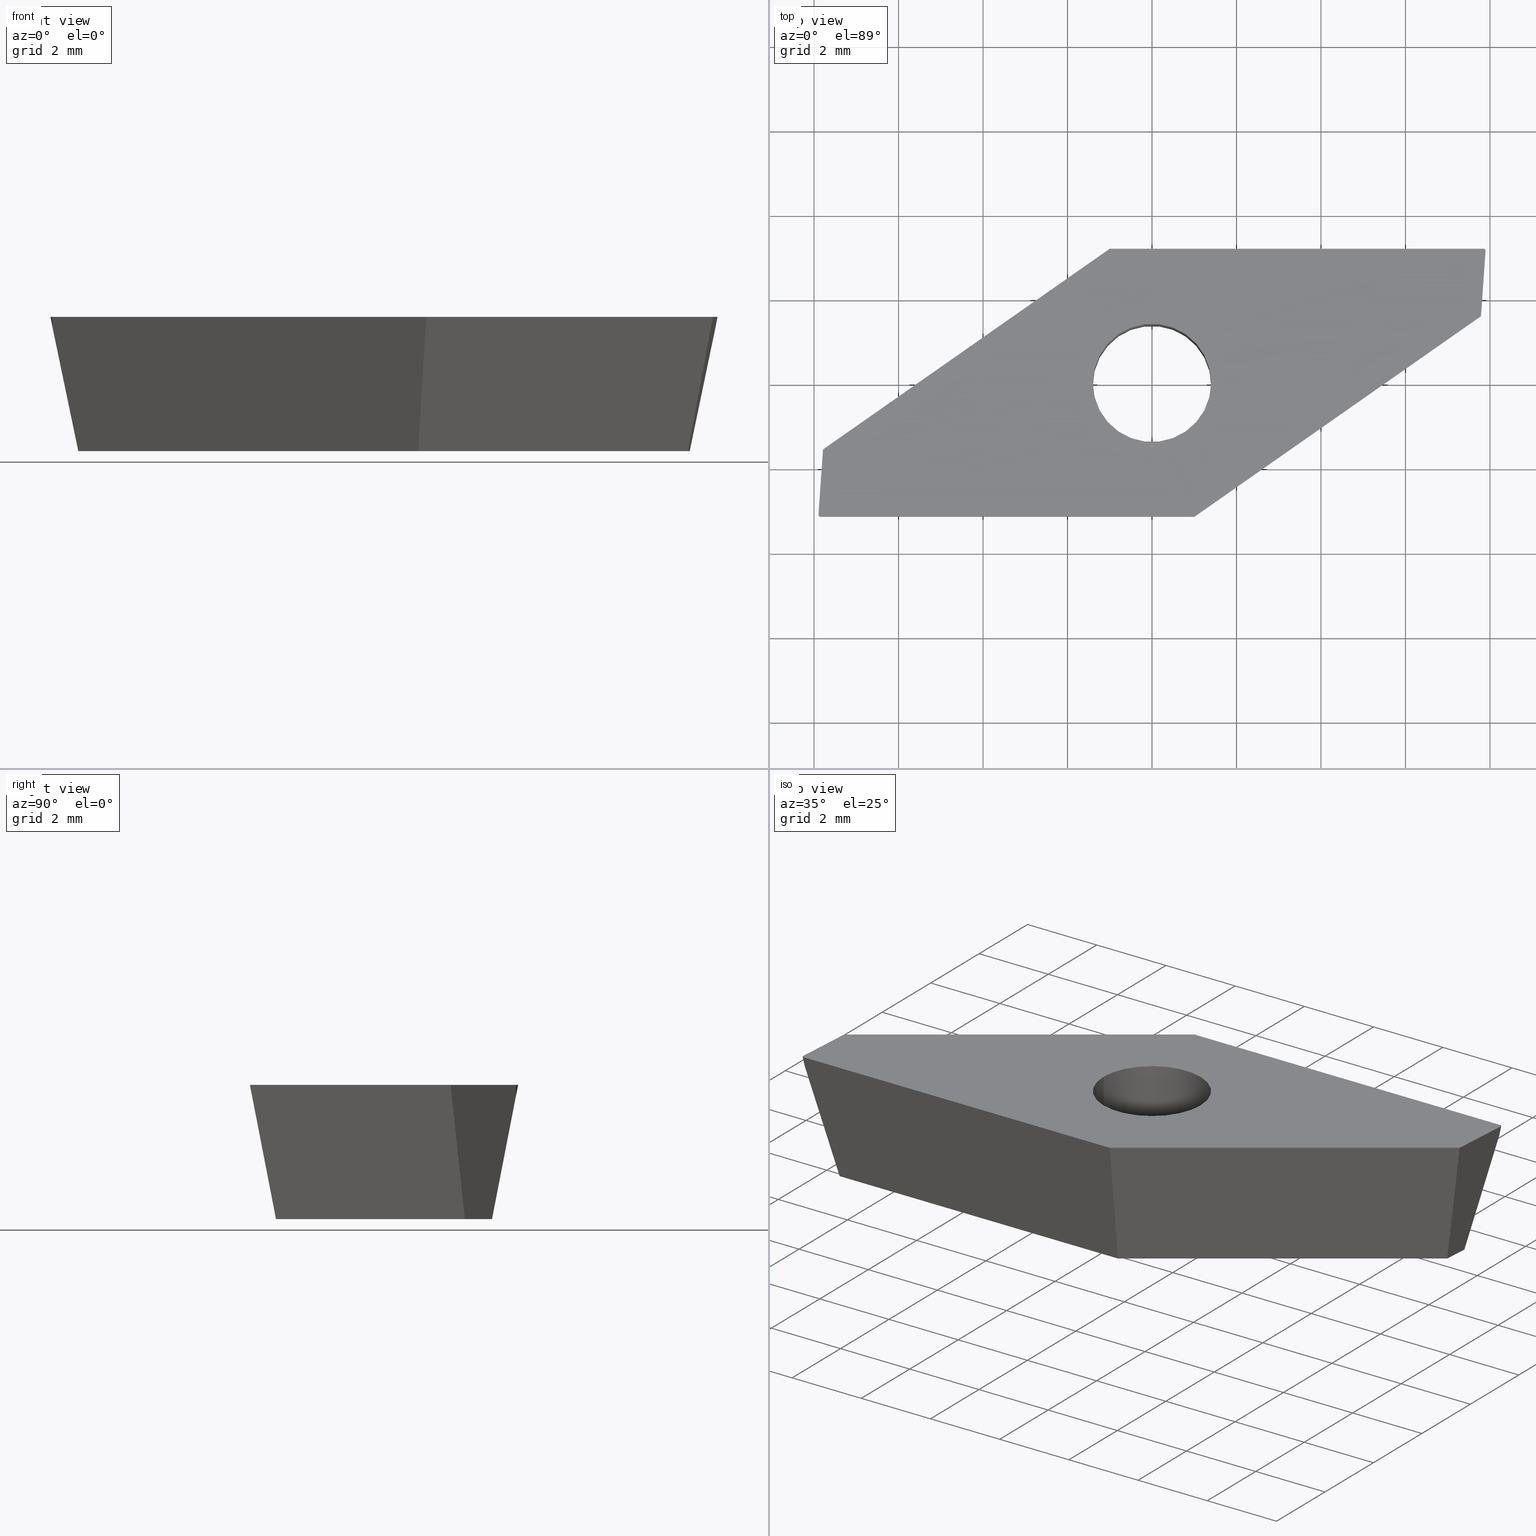
[diagram: canonical four-view strip — front | top / right | iso, engineering-drawing reading convention]
A machine part, canonical four-view strip (front | top / right | iso — engineering-drawing reading convention). The complete STEP part file that produces these views, byte-faithful:
ISO-10303-21;
HEADER;
FILE_DESCRIPTION (( 'STEP AP214' ),
    '1' );
FILE_NAME ('VP.. 1003005 .R.step',
    '2017-03-30T12:57:39',
    ( '' ),
    ( '' ),
    'SwSTEP 2.0',
    'SolidWorks 2016',
    '' );
FILE_SCHEMA (( 'AUTOMOTIVE_DESIGN' ));
ENDSEC;

DATA;
#1 = VECTOR ( 'NONE', #431, 1000.000000000000000 ) ;
#2 = CARTESIAN_POINT ( 'NONE',  ( 1.001073654690762600, -3.174999999999999800, 0.0000000000000000000 ) ) ;
#3 = FACE_OUTER_BOUND ( 'NONE', #160, .T. ) ;
#4 = DIRECTION ( 'NONE',  ( -0.8191520442889950200, -0.5735764363510415000, 0.0000000000000000000 ) ) ;
#5 = LINE ( 'NONE', #368, #124 ) ;
#6 = DIRECTION ( 'NONE',  ( 0.0000000000000000000, 0.0000000000000000000, -1.000000000000000000 ) ) ;
#7 = CLOSED_SHELL ( 'NONE', ( #445, #188, #23, #138, #38, #185, #164, #131, #61, #111, #156, #162, #96 ) ) ;
#8 = EDGE_CURVE ( 'NONE', #411, #99, #184, .T. ) ;
#9 = CARTESIAN_POINT ( 'NONE',  ( -7.237137390861799500, -2.556870616942054300, -3.180000000000000200 ) ) ;
#10 = ORIENTED_EDGE ( 'NONE', *, *, #226, .T. ) ;
#11 =( GEOMETRIC_REPRESENTATION_CONTEXT ( 3 ) GLOBAL_UNCERTAINTY_ASSIGNED_CONTEXT ( ( #100 ) ) GLOBAL_UNIT_ASSIGNED_CONTEXT ( ( #69, #81, #79 ) ) REPRESENTATION_CONTEXT ( 'NONE', 'WORKASPACE' ) );
#12 = AXIS2_PLACEMENT_3D ( 'NONE', #180, #291, #449 ) ;
#13 = CARTESIAN_POINT ( 'NONE',  ( 7.283376349052109500, 3.218118526079754900, -3.180000000000000200 ) ) ;
#14 = PRESENTATION_STYLE_ASSIGNMENT (( #66 ) ) ;
#15 = SURFACE_STYLE_FILL_AREA ( #145 ) ;
#16 = PRESENTATION_STYLE_ASSIGNMENT (( #70 ) ) ;
#17 = CONICAL_SURFACE ( 'NONE', #435, 0.04999999999999969700, 0.1919862177193767100 ) ;
#18 = PRODUCT_DEFINITION_CONTEXT ( 'detailed design', #30, 'design' ) ;
#19 = DIRECTION ( 'NONE',  ( -0.0000000000000000000, -0.0000000000000000000, 1.000000000000000000 ) ) ;
#20 = VECTOR ( 'NONE', #211, 1000.000000000000100 ) ;
#21 = COLOUR_RGB ( '',0.7960784313725489700, 0.8235294117647058400, 0.9372549019607843100 ) ;
#22 = LINE ( 'NONE', #298, #24 ) ;
#23 = ADVANCED_FACE ( 'NONE', ( #194 ), #371, .T. ) ;
#24 = VECTOR ( 'NONE', #306, 1000.000000000000100 ) ;
#25 =( GEOMETRIC_REPRESENTATION_CONTEXT ( 3 ) GLOBAL_UNCERTAINTY_ASSIGNED_CONTEXT ( ( #376 ) ) GLOBAL_UNIT_ASSIGNED_CONTEXT ( ( #98, #97, #95 ) ) REPRESENTATION_CONTEXT ( 'NONE', 'WORKASPACE' ) );
#26 = CONICAL_SURFACE ( 'NONE', #362, 0.04999999999999969700, 0.1919862177193767100 ) ;
#27 = VECTOR ( 'NONE', #379, 1000.000000000000100 ) ;
#28 = CONICAL_SURFACE ( 'NONE', #429, 0.04999999999999969700, 0.1919862177193767100 ) ;
#29 = APPLICATION_PROTOCOL_DEFINITION ( 'draft international standard', 'automotive_design', 1998, #30 ) ;
#30 = APPLICATION_CONTEXT ( 'automotive_design' ) ;
#31 = PRODUCT_CONTEXT ( 'NONE', #45, 'mechanical' ) ;
#32 = APPLICATION_PROTOCOL_DEFINITION ( 'draft international standard', 'automotive_design', 1998, #45 ) ;
#33 = APPLICATION_PROTOCOL_DEFINITION ( 'draft international standard', 'automotive_design', 1998, #35 ) ;
#34 = FACE_OUTER_BOUND ( 'NONE', #326, .T. ) ;
#35 = APPLICATION_CONTEXT ( 'automotive_design' ) ;
#36 = PRODUCT_CONTEXT ( 'NONE', #40, 'mechanical' ) ;
#37 = CARTESIAN_POINT ( 'NONE',  ( -1.001073654690764600, 3.174999999999999800, 0.0000000000000000000 ) ) ;
#38 = ADVANCED_FACE ( 'NONE', ( #3 ), #233, .T. ) ;
#39 = APPLICATION_PROTOCOL_DEFINITION ( 'draft international standard', 'automotive_design', 1998, #40 ) ;
#40 = APPLICATION_CONTEXT ( 'automotive_design' ) ;
#41 = AXIS2_PLACEMENT_3D ( 'NONE', #147, #274, #163 ) ;
#42 = FACE_OUTER_BOUND ( 'NONE', #344, .T. ) ;
#43 =( LENGTH_UNIT ( ) NAMED_UNIT ( * ) SI_UNIT ( .MILLI., .METRE. ) );
#44 = LINE ( 'NONE', #437, #27 ) ;
#45 = APPLICATION_CONTEXT ( 'automotive_design' ) ;
#46 = DIRECTION ( 'NONE',  ( 1.000000000000000000, 0.0000000000000000000, 0.0000000000000000000 ) ) ;
#47 = PLANE ( 'NONE',  #401 ) ;
#48 = FACE_OUTER_BOUND ( 'NONE', #352, .T. ) ;
#49 = PRODUCT_DEFINITION_CONTEXT ( 'detailed design', #35, 'design' ) ;
#50 = FACE_OUTER_BOUND ( 'NONE', #261, .T. ) ;
#51 = CARTESIAN_POINT ( 'NONE',  ( -7.896259767011758700, -3.121512176312794200, -2.356869175735090700E-016 ) ) ;
#52 = DIRECTION ( 'NONE',  ( 0.1832382521941806600, -0.1036712150141735900, 0.9775868360970839700 ) ) ;
#53 = DIRECTION ( 'NONE',  ( -1.000000000000000000, 0.0000000000000000000, 0.0000000000000000000 ) ) ;
#54 = DIRECTION ( 'NONE',  ( 0.0000000000000000000, 0.0000000000000000000, 1.000000000000000000 ) ) ;
#55 = DIRECTION ( 'NONE',  ( 1.000000000000000000, 0.0000000000000000000, 0.0000000000000000000 ) ) ;
#56 = DIRECTION ( 'NONE',  ( 1.000000000000000000, 0.0000000000000000000, 0.0000000000000000000 ) ) ;
#57 = FACE_OUTER_BOUND ( 'NONE', #377, .T. ) ;
#58 = FILL_AREA_STYLE ('',( #63 ) ) ;
#59 = CARTESIAN_POINT ( 'NONE',  ( 7.788289079147451100, 1.577459403657729400, 3.148184459698170000E-018 ) ) ;
#60 = DIRECTION ( 'NONE',  ( 0.06975647374412545500, 0.9975640502598242000, 0.0000000000000000000 ) ) ;
#61 = ADVANCED_FACE ( 'NONE', ( #168, #166 ), #276, .T. ) ;
#62 = VECTOR ( 'NONE', #4, 1000.000000000000000 ) ;
#63 = FILL_AREA_STYLE_COLOUR ( '', #392 ) ;
#64 = FACE_OUTER_BOUND ( 'NONE', #277, .T. ) ;
#65 = MECHANICAL_DESIGN_GEOMETRIC_PRESENTATION_REPRESENTATION (  '', ( #146 ), #122 ) ;
#66 = SURFACE_STYLE_USAGE ( .BOTH. , #212 ) ;
#67 = DIRECTION ( 'NONE',  ( 0.5630382217072209500, -0.8041019140508023400, -0.1908089953765452500 ) ) ;
#68 = EDGE_CURVE ( 'NONE', #296, #363, #127, .T. ) ;
#69 =( LENGTH_UNIT ( ) NAMED_UNIT ( * ) SI_UNIT ( .MILLI., .METRE. ) );
#70 = SURFACE_STYLE_USAGE ( .BOTH. , #74 ) ;
#71 = LINE ( 'NONE', #418, #62 ) ;
#72 = PLANE ( 'NONE',  #400 ) ;
#73 = EDGE_CURVE ( 'NONE', #318, #269, #5, .T. ) ;
#74 = SURFACE_SIDE_STYLE ('',( #369 ) ) ;
#75 = CIRCLE ( 'NONE', #191, 0.04999999999999969700 ) ;
#76 = CYLINDRICAL_SURFACE ( 'NONE', #385, 1.399999999999999900 ) ;
#77 = DIRECTION ( 'NONE',  ( 0.0000000000000000000, 0.0000000000000000000, 1.000000000000000000 ) ) ;
#78 = CIRCLE ( 'NONE', #273, 0.04999999999999969700 ) ;
#79 =( NAMED_UNIT ( * ) SI_UNIT ( $, .STERADIAN. ) SOLID_ANGLE_UNIT ( ) );
#80 = CARTESIAN_POINT ( 'NONE',  ( -7.846381564498768700, -3.125000000000000400, 0.0000000000000000000 ) ) ;
#81 =( NAMED_UNIT ( * ) PLANE_ANGLE_UNIT ( ) SI_UNIT ( $, .RADIAN. ) );
#82 = DIRECTION ( 'NONE',  ( 0.0000000000000000000, 0.0000000000000000000, 1.000000000000000000 ) ) ;
#83 = FACE_BOUND ( 'NONE', #305, .T. ) ;
#84 = DIRECTION ( 'NONE',  ( 0.8191520442889952400, 0.5735764363510412700, -0.0000000000000000000 ) ) ;
#85 = CARTESIAN_POINT ( 'NONE',  ( 7.788289079147451100, 1.577459403657729400, 0.0000000000000000000 ) ) ;
#86 = VERTEX_POINT ( 'NONE', #229 ) ;
#87 = CARTESIAN_POINT ( 'NONE',  ( 1.399999999999999900, 0.0000000000000000000, 0.0000000000000000000 ) ) ;
#88 = AXIS2_PLACEMENT_3D ( 'NONE', #242, #238, #237 ) ;
#89 = DIRECTION ( 'NONE',  ( -0.0000000000000000000, -0.0000000000000000000, 1.000000000000000000 ) ) ;
#90 = VECTOR ( 'NONE', #133, 1000.000000000000000 ) ;
#91 = CARTESIAN_POINT ( 'NONE',  ( -7.846381564498768700, -3.125000000000000400, 0.0000000000000000000 ) ) ;
#92 = LINE ( 'NONE', #312, #90 ) ;
#93 = EDGE_CURVE ( 'NONE', #86, #313, #92, .T. ) ;
#94 = VECTOR ( 'NONE', #190, 1000.000000000000100 ) ;
#95 =( NAMED_UNIT ( * ) SI_UNIT ( $, .STERADIAN. ) SOLID_ANGLE_UNIT ( ) );
#96 = ADVANCED_FACE ( 'NONE', ( #117 ), #76, .F. ) ;
#97 =( NAMED_UNIT ( * ) PLANE_ANGLE_UNIT ( ) SI_UNIT ( $, .RADIAN. ) );
#98 =( LENGTH_UNIT ( ) NAMED_UNIT ( * ) SI_UNIT ( .MILLI., .METRE. ) );
#99 = VERTEX_POINT ( 'NONE', #142 ) ;
#100 = UNCERTAINTY_MEASURE_WITH_UNIT (LENGTH_MEASURE( 1.000000000000000100E-005 ), #69, 'distance_accuracy_value', 'NONE');
#101 = ORIENTED_EDGE ( 'NONE', *, *, #394, .T. ) ;
#102 = ORIENTED_EDGE ( 'NONE', *, *, #215, .F. ) ;
#103 = CARTESIAN_POINT ( 'NONE',  ( -0.8061782088420828000, 2.556870616942053400, -3.180000000000000200 ) ) ;
#104 = DIRECTION ( 'NONE',  ( -0.0000000000000000000, -0.0000000000000000000, 1.000000000000000000 ) ) ;
#105 = EDGE_CURVE ( 'NONE', #269, #411, #78, .T. ) ;
#106 = CARTESIAN_POINT ( 'NONE',  ( 0.0000000000000000000, 0.0000000000000000000, 0.0000000000000000000 ) ) ;
#107 = DIRECTION ( 'NONE',  ( -0.0000000000000000000, -0.0000000000000000000, 1.000000000000000000 ) ) ;
#108 = EDGE_LOOP ( 'NONE', ( #213, #214, #216, #222, #224 ) ) ;
#109 = ORIENTED_EDGE ( 'NONE', *, *, #324, .T. ) ;
#110 = CARTESIAN_POINT ( 'NONE',  ( 7.900000000000000400, 3.175000000000000700, 0.0000000000000000000 ) ) ;
#111 = ADVANCED_FACE ( 'NONE', ( #83, #125 ), #356, .F. ) ;
#112 = VERTEX_POINT ( 'NONE', #128 ) ;
#113 = CARTESIAN_POINT ( 'NONE',  ( -7.900000000000002100, -3.175000000000000700, 0.0000000000000000000 ) ) ;
#114 = CARTESIAN_POINT ( 'NONE',  ( 0.0000000000000000000, 0.0000000000000000000, 0.0000000000000000000 ) ) ;
#115 = DIRECTION ( 'NONE',  ( 1.000000000000000000, 0.0000000000000000000, 0.0000000000000000000 ) ) ;
#116 = DIRECTION ( 'NONE',  ( -1.000000000000000000, 0.0000000000000000000, 0.0000000000000000000 ) ) ;
#117 = FACE_OUTER_BOUND ( 'NONE', #334, .T. ) ;
#118 = DIRECTION ( 'NONE',  ( -0.0000000000000000000, -0.0000000000000000000, 1.000000000000000000 ) ) ;
#119 = CARTESIAN_POINT ( 'NONE',  ( 7.846381564498766900, 3.125000000000000400, 0.0000000000000000000 ) ) ;
#120 = CARTESIAN_POINT ( 'NONE',  ( -1.399999999999999900, 1.714505518806294100E-016, -3.180000000000000200 ) ) ;
#121 = EDGE_CURVE ( 'NONE', #313, #236, #71, .T. ) ;
#122 =( GEOMETRIC_REPRESENTATION_CONTEXT ( 3 ) GLOBAL_UNCERTAINTY_ASSIGNED_CONTEXT ( ( #436 ) ) GLOBAL_UNIT_ASSIGNED_CONTEXT ( ( #43, #177, #183 ) ) REPRESENTATION_CONTEXT ( 'NONE', 'WORKASPACE' ) );
#123 = CARTESIAN_POINT ( 'NONE',  ( 1.001073654690762600, -2.556870616942053400, -3.180000000000000200 ) ) ;
#124 = VECTOR ( 'NONE', #440, 999.9999999999998900 ) ;
#125 = FACE_OUTER_BOUND ( 'NONE', #325, .T. ) ;
#126 = DIRECTION ( 'NONE',  ( -0.0000000000000000000, -0.0000000000000000000, 1.000000000000000000 ) ) ;
#127 = LINE ( 'NONE', #330, #417 ) ;
#128 = CARTESIAN_POINT ( 'NONE',  ( -1.399999999999999900, 1.714505518806294100E-016, 0.0000000000000000000 ) ) ;
#129 = ORIENTED_EDGE ( 'NONE', *, *, #450, .F. ) ;
#130 = DIRECTION ( 'NONE',  ( 0.8191520442889951300, 0.5735764363510412700, 0.0000000000000000000 ) ) ;
#131 = ADVANCED_FACE ( 'NONE', ( #64 ), #245, .T. ) ;
#132 = AXIS2_PLACEMENT_3D ( 'NONE', #119, #118, #116 ) ;
#133 = DIRECTION ( 'NONE',  ( -1.000000000000000000, -9.744461978823350000E-017, 0.0000000000000000000 ) ) ;
#134 = CARTESIAN_POINT ( 'NONE',  ( 1.399999999999999900, 0.0000000000000000000, -3.180000000000000200 ) ) ;
#135 = DIRECTION ( 'NONE',  ( -0.8191520442889951300, -0.5735764363510415000, -0.0000000000000000000 ) ) ;
#136 = AXIS2_PLACEMENT_3D ( 'NONE', #353, #6, #278 ) ;
#137 = CARTESIAN_POINT ( 'NONE',  ( 7.896259767011756900, 3.121512176312794200, 0.0000000000000000000 ) ) ;
#138 = ADVANCED_FACE ( 'NONE', ( #57 ), #424, .T. ) ;
#139 = CARTESIAN_POINT ( 'NONE',  ( -7.788289079147451900, -1.577459403657731600, 0.0000000000000000000 ) ) ;
#140 = AXIS2_PLACEMENT_3D ( 'NONE', #161, #107, #115 ) ;
#141 = ADVANCED_BREP_SHAPE_REPRESENTATION ( 'VP.. 1003005 .R', ( #267, #209 ), #25 ) ;
#142 = CARTESIAN_POINT ( 'NONE',  ( 1.001073654690762600, -3.174999999999999800, 0.0000000000000000000 ) ) ;
#143 = DIRECTION ( 'NONE',  ( -0.1832382521941805800, 0.1036712150141736000, 0.9775868360970839700 ) ) ;
#144 = CARTESIAN_POINT ( 'NONE',  ( 7.433744630409206500, 2.083801351424741500, -3.180000000000000200 ) ) ;
#145 = FILL_AREA_STYLE ('',( #383 ) ) ;
#146 = STYLED_ITEM ( 'NONE', ( #14 ), #267 ) ;
#147 = CARTESIAN_POINT ( 'NONE',  ( 0.0000000000000000000, 0.0000000000000000000, -3.180000000000000200 ) ) ;
#148 = DIRECTION ( 'NONE',  ( 1.000000000000000000, 9.744461978823350000E-017, 0.0000000000000000000 ) ) ;
#149 = ORIENTED_EDGE ( 'NONE', *, *, #354, .T. ) ;
#150 = DIRECTION ( 'NONE',  ( 0.9792359889651950400, -0.06847485084868677700, -0.1908089953765452500 ) ) ;
#151 = DIRECTION ( 'NONE',  ( 0.1903441942538345300, -0.01331016267612693300, 0.9816271834476638600 ) ) ;
#152 = DIRECTION ( 'NONE',  ( -0.1903441942538345300, 0.01331016267612705400, 0.9816271834476638600 ) ) ;
#153 = DIRECTION ( 'NONE',  ( -0.0000000000000000000, -0.0000000000000000000, 1.000000000000000000 ) ) ;
#154 = CARTESIAN_POINT ( 'NONE',  ( 7.896259767011756900, 3.121512176312794200, -2.478630161902896400E-016 ) ) ;
#155 = AXIS2_PLACEMENT_3D ( 'NONE', #173, #172, #171 ) ;
#156 = ADVANCED_FACE ( 'NONE', ( #50 ), #28, .T. ) ;
#157 = ORIENTED_EDGE ( 'NONE', *, *, #93, .T. ) ;
#158 = PRODUCT_DEFINITION ( 'UNKNOWN', '', #345, #18 ) ;
#159 = ORIENTED_EDGE ( 'NONE', *, *, #433, .T. ) ;
#160 = EDGE_LOOP ( 'NONE', ( #243, #101, #246, #157, #109 ) ) ;
#161 = CARTESIAN_POINT ( 'NONE',  ( 0.0000000000000000000, 0.0000000000000000000, -3.180000000000000200 ) ) ;
#162 = ADVANCED_FACE ( 'NONE', ( #42 ), #26, .T. ) ;
#163 = DIRECTION ( 'NONE',  ( -1.000000000000000000, 0.0000000000000000000, -0.0000000000000000000 ) ) ;
#164 = ADVANCED_FACE ( 'NONE', ( #34 ), #72, .T. ) ;
#165 = ORIENTED_EDGE ( 'NONE', *, *, #8, .F. ) ;
#166 = FACE_OUTER_BOUND ( 'NONE', #357, .T. ) ;
#167 = FACE_OUTER_BOUND ( 'NONE', #244, .T. ) ;
#168 = FACE_BOUND ( 'NONE', #304, .T. ) ;
#169 = PRODUCT_DEFINITION ( 'UNKNOWN', '', #196, #49 ) ;
#170 = CARTESIAN_POINT ( 'NONE',  ( -7.788289079147451900, -1.577459403657731600, 0.0000000000000000000 ) ) ;
#171 = DIRECTION ( 'NONE',  ( 1.000000000000000000, 0.0000000000000000000, 0.0000000000000000000 ) ) ;
#172 = DIRECTION ( 'NONE',  ( 0.0000000000000000000, 0.0000000000000000000, 1.000000000000000000 ) ) ;
#173 = CARTESIAN_POINT ( 'NONE',  ( 0.0000000000000000000, 0.0000000000000000000, -3.180000000000000200 ) ) ;
#174 = DIRECTION ( 'NONE',  ( 0.8191520442889951300, 0.5735764363510412700, 0.0000000000000000000 ) ) ;
#175 = CARTESIAN_POINT ( 'NONE',  ( -7.846381564498766900, -3.125000000000000400, -0.2572277007985163700 ) ) ;
#176 = CARTESIAN_POINT ( 'NONE',  ( -7.846381564498768700, -3.175000000000000700, 0.0000000000000000000 ) ) ;
#177 =( NAMED_UNIT ( * ) PLANE_ANGLE_UNIT ( ) SI_UNIT ( $, .RADIAN. ) );
#178 = CARTESIAN_POINT ( 'NONE',  ( -1.001073654690764600, 3.174999999999999800, 0.0000000000000000000 ) ) ;
#179 = LINE ( 'NONE', #85, #271 ) ;
#180 = CARTESIAN_POINT ( 'NONE',  ( -7.788289079147451900, -1.577459403657731600, 0.0000000000000000000 ) ) ;
#181 = LINE ( 'NONE', #178, #20 ) ;
#182 = DIRECTION ( 'NONE',  ( -0.06975647374412608000, -0.9975640502598242000, 0.0000000000000000000 ) ) ;
#183 =( NAMED_UNIT ( * ) SI_UNIT ( $, .STERADIAN. ) SOLID_ANGLE_UNIT ( ) );
#184 = LINE ( 'NONE', #2, #1 ) ;
#185 = ADVANCED_FACE ( 'NONE', ( #48 ), #47, .T. ) ;
#186 = CARTESIAN_POINT ( 'NONE',  ( -1.001073654690764600, 3.174999999999999800, 0.0000000000000000000 ) ) ;
#187 = CARTESIAN_POINT ( 'NONE',  ( 7.900000000000000400, 3.175000000000000700, 0.0000000000000000000 ) ) ;
#188 = ADVANCED_FACE ( 'NONE', ( #167 ), #17, .T. ) ;
#189 = AXIS2_PLACEMENT_3D ( 'NONE', #197, #203, #206 ) ;
#190 = DIRECTION ( 'NONE',  ( -0.2004640746510998900, -0.1869357738407769500, 0.9617011860410842300 ) ) ;
#191 = AXIS2_PLACEMENT_3D ( 'NONE', #91, #104, #221 ) ;
#192 = VECTOR ( 'NONE', #268, 1000.000000000000200 ) ;
#193 = CARTESIAN_POINT ( 'NONE',  ( 7.846381564498766900, 3.125000000000000400, 0.0000000000000000000 ) ) ;
#194 = FACE_OUTER_BOUND ( 'NONE', #108, .T. ) ;
#195 = CARTESIAN_POINT ( 'NONE',  ( -7.846381564498768700, -3.175000000000000700, 1.921625099205375900E-018 ) ) ;
#196 = PRODUCT_DEFINITION_FORMATION_WITH_SPECIFIED_SOURCE ( 'ANY', '', #444, .NOT_KNOWN. ) ;
#197 = CARTESIAN_POINT ( 'NONE',  ( 0.0000000000000000000, 0.0000000000000000000, -3.180000000000000200 ) ) ;
#198 = ORIENTED_EDGE ( 'NONE', *, *, #409, .F. ) ;
#199 = CARTESIAN_POINT ( 'NONE',  ( -7.846381564498768700, -3.125000000000000400, 0.0000000000000000000 ) ) ;
#200 = CARTESIAN_POINT ( 'NONE',  ( -7.788289079147451900, -1.577459403657731600, 0.0000000000000000000 ) ) ;
#201 = ORIENTED_EDGE ( 'NONE', *, *, #355, .F. ) ;
#202 = ORIENTED_EDGE ( 'NONE', *, *, #73, .T. ) ;
#203 = DIRECTION ( 'NONE',  ( 0.0000000000000000000, 0.0000000000000000000, 1.000000000000000000 ) ) ;
#204 = ORIENTED_EDGE ( 'NONE', *, *, #226, .F. ) ;
#205 = EDGE_CURVE ( 'NONE', #86, #275, #22, .T. ) ;
#206 = DIRECTION ( 'NONE',  ( 1.000000000000000000, 0.0000000000000000000, 0.0000000000000000000 ) ) ;
#207 = CARTESIAN_POINT ( 'NONE',  ( -1.399999999999999900, 1.714505518806294100E-016, -3.180000000000000200 ) ) ;
#208 = DIRECTION ( 'NONE',  ( -0.0000000000000000000, -0.0000000000000000000, 1.000000000000000000 ) ) ;
#209 = AXIS2_PLACEMENT_3D ( 'NONE', #114, #77, #55 ) ;
#210 = ORIENTED_EDGE ( 'NONE', *, *, #399, .F. ) ;
#211 = DIRECTION ( 'NONE',  ( -0.06005326349153970700, 0.1904646183547176200, 0.9798555172570124800 ) ) ;
#212 = SURFACE_SIDE_STYLE ('',( #15 ) ) ;
#213 = ORIENTED_EDGE ( 'NONE', *, *, #397, .T. ) ;
#214 = ORIENTED_EDGE ( 'NONE', *, *, #332, .T. ) ;
#215 = EDGE_CURVE ( 'NONE', #365, #99, #44, .T. ) ;
#216 = ORIENTED_EDGE ( 'NONE', *, *, #355, .T. ) ;
#217 = DIRECTION ( 'NONE',  ( -1.000000000000000000, 0.0000000000000000000, 0.0000000000000000000 ) ) ;
#218 = CARTESIAN_POINT ( 'NONE',  ( -7.283376349052111300, -3.218118526079755300, -3.180000000000000200 ) ) ;
#219 = VERTEX_POINT ( 'NONE', #9 ) ;
#220 = VECTOR ( 'NONE', #52, 1000.000000000000000 ) ;
#221 = DIRECTION ( 'NONE',  ( -1.000000000000000000, 0.0000000000000000000, 0.0000000000000000000 ) ) ;
#222 = ORIENTED_EDGE ( 'NONE', *, *, #68, .F. ) ;
#223 = CARTESIAN_POINT ( 'NONE',  ( 0.0000000000000000000, 0.0000000000000000000, 0.0000000000000000000 ) ) ;
#224 = ORIENTED_EDGE ( 'NONE', *, *, #405, .F. ) ;
#225 = ORIENTED_EDGE ( 'NONE', *, *, #407, .F. ) ;
#226 = EDGE_CURVE ( 'NONE', #363, #269, #75, .T. ) ;
#227 = VERTEX_POINT ( 'NONE', #421 ) ;
#228 = ORIENTED_EDGE ( 'NONE', *, *, #324, .F. ) ;
#229 = CARTESIAN_POINT ( 'NONE',  ( 7.237137390861797700, 2.556870616942054300, -3.180000000000000200 ) ) ;
#230 = ORIENTED_EDGE ( 'NONE', *, *, #121, .T. ) ;
#231 = VERTEX_POINT ( 'NONE', #443 ) ;
#232 = LINE ( 'NONE', #110, #192 ) ;
#233 = PLANE ( 'NONE',  #319 ) ;
#234 = CARTESIAN_POINT ( 'NONE',  ( 1.001073654690762600, -3.174999999999999800, 0.0000000000000000000 ) ) ;
#235 = DIRECTION ( 'NONE',  ( -0.0000000000000000000, -0.0000000000000000000, 1.000000000000000000 ) ) ;
#236 = VERTEX_POINT ( 'NONE', #439 ) ;
#237 = DIRECTION ( 'NONE',  ( 1.000000000000000000, 0.0000000000000000000, 0.0000000000000000000 ) ) ;
#238 = DIRECTION ( 'NONE',  ( 0.0000000000000000000, 0.0000000000000000000, 1.000000000000000000 ) ) ;
#239 = VECTOR ( 'NONE', #60, 1000.000000000000100 ) ;
#240 = CARTESIAN_POINT ( 'NONE',  ( 7.192231910145610000, 1.914692324122640600, -3.180000000000000200 ) ) ;
#241 = ORIENTED_EDGE ( 'NONE', *, *, #405, .T. ) ;
#242 = CARTESIAN_POINT ( 'NONE',  ( 0.0000000000000000000, 0.0000000000000000000, 0.0000000000000000000 ) ) ;
#243 = ORIENTED_EDGE ( 'NONE', *, *, #403, .F. ) ;
#244 = EDGE_LOOP ( 'NONE', ( #201, #202, #204 ) ) ;
#245 = PLANE ( 'NONE',  #349 ) ;
#246 = ORIENTED_EDGE ( 'NONE', *, *, #205, .F. ) ;
#247 = CARTESIAN_POINT ( 'NONE',  ( 7.846381564498766900, 3.175000000000000700, 1.921625099205375900E-018 ) ) ;
#248 = LINE ( 'NONE', #59, #220 ) ;
#249 = CARTESIAN_POINT ( 'NONE',  ( -1.001073654690764600, 3.174999999999999800, 0.0000000000000000000 ) ) ;
#250 = VERTEX_POINT ( 'NONE', #207 ) ;
#251 = VECTOR ( 'NONE', #151, 1000.000000000000100 ) ;
#252 = DIRECTION ( 'NONE',  ( 9.565428766485213700E-017, -0.9816271834476639800, -0.1908089953765452800 ) ) ;
#253 = ORIENTED_EDGE ( 'NONE', *, *, #432, .T. ) ;
#254 = DIRECTION ( 'NONE',  ( -1.000000000000000000, -9.744461978823348800E-017, -0.0000000000000000000 ) ) ;
#255 = ORIENTED_EDGE ( 'NONE', *, *, #205, .T. ) ;
#256 = ORIENTED_EDGE ( 'NONE', *, *, #428, .T. ) ;
#257 = ORIENTED_EDGE ( 'NONE', *, *, #441, .F. ) ;
#258 = ORIENTED_EDGE ( 'NONE', *, *, #433, .F. ) ;
#259 = LINE ( 'NONE', #13, #239 ) ;
#260 = LINE ( 'NONE', #154, #251 ) ;
#261 = EDGE_LOOP ( 'NONE', ( #337, #314, #316 ) ) ;
#262 = CARTESIAN_POINT ( 'NONE',  ( -7.896381564498768500, -3.125000000000000400, 0.0000000000000000000 ) ) ;
#263 = VECTOR ( 'NONE', #153, 1000.000000000000000 ) ;
#264 = CIRCLE ( 'NONE', #132, 0.04999999999999969700 ) ;
#265 = DIRECTION ( 'NONE',  ( -1.859331000664225100E-017, 0.1908089953765452500, -0.9816271834476638600 ) ) ;
#266 = VERTEX_POINT ( 'NONE', #240 ) ;
#267 = MANIFOLD_SOLID_BREP ( 'Schnitt-Linear austragen1', #7 ) ;
#268 = DIRECTION ( 'NONE',  ( 0.06975647374412544100, 0.9975640502598242000, -0.0000000000000000000 ) ) ;
#269 = VERTEX_POINT ( 'NONE', #262 ) ;
#270 = ORIENTED_EDGE ( 'NONE', *, *, #422, .T. ) ;
#271 = VECTOR ( 'NONE', #84, 1000.000000000000100 ) ;
#272 = ORIENTED_EDGE ( 'NONE', *, *, #380, .T. ) ;
#273 = AXIS2_PLACEMENT_3D ( 'NONE', #199, #89, #396 ) ;
#274 = DIRECTION ( 'NONE',  ( 0.0000000000000000000, 0.0000000000000000000, -1.000000000000000000 ) ) ;
#275 = VERTEX_POINT ( 'NONE', #406 ) ;
#276 = PLANE ( 'NONE',  #41 ) ;
#277 = EDGE_LOOP ( 'NONE', ( #165, #272, #284, #286, #287 ) ) ;
#278 = DIRECTION ( 'NONE',  ( -1.000000000000000000, 0.0000000000000000000, -0.0000000000000000000 ) ) ;
#279 = DIRECTION ( 'NONE',  ( -0.0000000000000000000, -0.0000000000000000000, 1.000000000000000000 ) ) ;
#280 = VECTOR ( 'NONE', #148, 1000.000000000000000 ) ;
#281 = VERTEX_POINT ( 'NONE', #87 ) ;
#282 = CARTESIAN_POINT ( 'NONE',  ( 0.8061782088420801400, -2.556870616942053400, -3.180000000000000200 ) ) ;
#283 = DIRECTION ( 'NONE',  ( 1.859331000664225100E-017, -0.1908089953765452500, -0.9816271834476638600 ) ) ;
#284 = ORIENTED_EDGE ( 'NONE', *, *, #332, .F. ) ;
#285 = VECTOR ( 'NONE', #174, 1000.000000000000000 ) ;
#286 = ORIENTED_EDGE ( 'NONE', *, *, #414, .T. ) ;
#287 = ORIENTED_EDGE ( 'NONE', *, *, #215, .T. ) ;
#288 = PRESENTATION_LAYER_ASSIGNMENT (  '', '', ( #146 ) ) ;
#289 = CARTESIAN_POINT ( 'NONE',  ( -7.896259767011758700, -3.121512176312794200, 0.0000000000000000000 ) ) ;
#290 = ORIENTED_EDGE ( 'NONE', *, *, #342, .T. ) ;
#291 = DIRECTION ( 'NONE',  ( -0.5630382217072211800, 0.8041019140508022200, -0.1908089953765452500 ) ) ;
#292 = ORIENTED_EDGE ( 'NONE', *, *, #399, .T. ) ;
#293 = ORIENTED_EDGE ( 'NONE', *, *, #93, .F. ) ;
#294 = ORIENTED_EDGE ( 'NONE', *, *, #432, .F. ) ;
#295 = LINE ( 'NONE', #120, #263 ) ;
#296 = VERTEX_POINT ( 'NONE', #200 ) ;
#297 = VECTOR ( 'NONE', #126, 1000.000000000000000 ) ;
#298 = CARTESIAN_POINT ( 'NONE',  ( 7.900000000000000400, 3.175000000000000700, 0.0000000000000000000 ) ) ;
#299 = ORIENTED_EDGE ( 'NONE', *, *, #422, .F. ) ;
#300 = ORIENTED_EDGE ( 'NONE', *, *, #414, .F. ) ;
#301 = ORIENTED_EDGE ( 'NONE', *, *, #397, .F. ) ;
#302 = ORIENTED_EDGE ( 'NONE', *, *, #121, .F. ) ;
#303 = ORIENTED_EDGE ( 'NONE', *, *, #381, .F. ) ;
#304 = EDGE_LOOP ( 'NONE', ( #290, #292 ) ) ;
#305 = EDGE_LOOP ( 'NONE', ( #303, #309 ) ) ;
#306 = DIRECTION ( 'NONE',  ( 0.2004640746510997800, 0.1869357738407769500, 0.9617011860410842300 ) ) ;
#307 = LINE ( 'NONE', #113, #94 ) ;
#308 = CYLINDRICAL_SURFACE ( 'NONE', #140, 1.399999999999999900 ) ;
#309 = ORIENTED_EDGE ( 'NONE', *, *, #354, .F. ) ;
#310 = VERTEX_POINT ( 'NONE', #398 ) ;
#311 = ORIENTED_EDGE ( 'NONE', *, *, #441, .T. ) ;
#312 = CARTESIAN_POINT ( 'NONE',  ( -1.001073654690764600, 2.556870616942053400, -3.180000000000000200 ) ) ;
#313 = VERTEX_POINT ( 'NONE', #103 ) ;
#314 = ORIENTED_EDGE ( 'NONE', *, *, #394, .F. ) ;
#315 = DIRECTION ( 'NONE',  ( -0.9792359889651950400, 0.06847485084868740200, -0.1908089953765452800 ) ) ;
#316 = ORIENTED_EDGE ( 'NONE', *, *, #425, .F. ) ;
#317 = ORIENTED_EDGE ( 'NONE', *, *, #73, .F. ) ;
#318 = VERTEX_POINT ( 'NONE', #175 ) ;
#319 = AXIS2_PLACEMENT_3D ( 'NONE', #37, #393, #391 ) ;
#320 = FACE_OUTER_BOUND ( 'NONE', #347, .T. ) ;
#321 = ORIENTED_EDGE ( 'NONE', *, *, #380, .F. ) ;
#322 = ORIENTED_EDGE ( 'NONE', *, *, #105, .T. ) ;
#323 = ORIENTED_EDGE ( 'NONE', *, *, #105, .F. ) ;
#324 = EDGE_CURVE ( 'NONE', #313, #329, #181, .T. ) ;
#325 = EDGE_LOOP ( 'NONE', ( #311, #367, #359, #390, #416, #10, #322, #339, #336 ) ) ;
#326 = EDGE_LOOP ( 'NONE', ( #129, #102, #270, #159 ) ) ;
#327 = PRODUCT_RELATED_PRODUCT_CATEGORY ( 'part', '', ( #444 ) ) ;
#328 = LINE ( 'NONE', #123, #280 ) ;
#329 = VERTEX_POINT ( 'NONE', #186 ) ;
#330 = CARTESIAN_POINT ( 'NONE',  ( -7.900000000000002100, -3.175000000000000700, 0.0000000000000000000 ) ) ;
#331 = VERTEX_POINT ( 'NONE', #137 ) ;
#332 = EDGE_CURVE ( 'NONE', #219, #318, #307, .T. ) ;
#333 = CARTESIAN_POINT ( 'NONE',  ( -7.846381564498768700, -3.125000000000000400, 0.0000000000000000000 ) ) ;
#334 = EDGE_LOOP ( 'NONE', ( #387, #382, #384, #351 ) ) ;
#335 = DIRECTION ( 'NONE',  ( -0.1912579077465619300, 0.0000000000000000000, -0.9815398171874677400 ) ) ;
#336 = ORIENTED_EDGE ( 'NONE', *, *, #450, .T. ) ;
#337 = ORIENTED_EDGE ( 'NONE', *, *, #428, .F. ) ;
#338 = VECTOR ( 'NONE', #135, 1000.000000000000100 ) ;
#339 = ORIENTED_EDGE ( 'NONE', *, *, #8, .T. ) ;
#340 = DIRECTION ( 'NONE',  ( -0.06975647374412606600, -0.9975640502598242000, -0.0000000000000000000 ) ) ;
#341 = AXIS2_PLACEMENT_3D ( 'NONE', #410, #315, #395 ) ;
#342 = EDGE_CURVE ( 'NONE', #310, #250, #446, .T. ) ;
#343 = LINE ( 'NONE', #134, #297 ) ;
#344 = EDGE_LOOP ( 'NONE', ( #317, #321, #323 ) ) ;
#345 = PRODUCT_DEFINITION_FORMATION_WITH_SPECIFIED_SOURCE ( 'ANY', '', #389, .NOT_KNOWN. ) ;
#346 = VECTOR ( 'NONE', #143, 1000.000000000000100 ) ;
#347 = EDGE_LOOP ( 'NONE', ( #210, #388, #149, #198 ) ) ;
#348 = CIRCLE ( 'NONE', #420, 1.399999999999999900 ) ;
#349 = AXIS2_PLACEMENT_3D ( 'NONE', #234, #252, #370 ) ;
#350 = LINE ( 'NONE', #139, #338 ) ;
#351 = ORIENTED_EDGE ( 'NONE', *, *, #381, .T. ) ;
#352 = EDGE_LOOP ( 'NONE', ( #253, #255, #256, #257, #258 ) ) ;
#353 = CARTESIAN_POINT ( 'NONE',  ( 0.0000000000000000000, 0.0000000000000000000, 0.0000000000000000000 ) ) ;
#354 = EDGE_CURVE ( 'NONE', #112, #281, #348, .T. ) ;
#355 = EDGE_CURVE ( 'NONE', #318, #363, #438, .T. ) ;
#356 = PLANE ( 'NONE',  #136 ) ;
#357 = EDGE_LOOP ( 'NONE', ( #293, #294, #299, #300, #301, #302 ) ) ;
#358 = DIRECTION ( 'NONE',  ( -1.000000000000000000, 0.0000000000000000000, 0.0000000000000000000 ) ) ;
#359 = ORIENTED_EDGE ( 'NONE', *, *, #403, .T. ) ;
#360 = STYLED_ITEM ( 'NONE', ( #16 ), #141 ) ;
#361 = VECTOR ( 'NONE', #254, 1000.000000000000000 ) ;
#362 = AXIS2_PLACEMENT_3D ( 'NONE', #80, #279, #53 ) ;
#363 = VERTEX_POINT ( 'NONE', #289 ) ;
#364 = PRODUCT_DEFINITION_SHAPE ( 'NONE', 'NONE',  #169 ) ;
#365 = VERTEX_POINT ( 'NONE', #282 ) ;
#366 = LINE ( 'NONE', #170, #346 ) ;
#367 = ORIENTED_EDGE ( 'NONE', *, *, #425, .T. ) ;
#368 = CARTESIAN_POINT ( 'NONE',  ( -7.896381564498768500, -3.125000000000000400, 0.0000000000000000000 ) ) ;
#369 = SURFACE_STYLE_FILL_AREA ( #58 ) ;
#370 = DIRECTION ( 'NONE',  ( 0.0000000000000000000, 0.1908089953765452800, -0.9816271834476639800 ) ) ;
#371 = PLANE ( 'NONE',  #341 ) ;
#372 = LINE ( 'NONE', #249, #361 ) ;
#373 = VECTOR ( 'NONE', #182, 1000.000000000000100 ) ;
#374 = PRODUCT_RELATED_PRODUCT_CATEGORY ( 'part', '', ( #389 ) ) ;
#375 = CIRCLE ( 'NONE', #155, 1.399999999999999900 ) ;
#376 = UNCERTAINTY_MEASURE_WITH_UNIT (LENGTH_MEASURE( 1.000000000000000100E-005 ), #98, 'distance_accuracy_value', 'NONE');
#377 = EDGE_LOOP ( 'NONE', ( #225, #228, #230, #241 ) ) ;
#378 = PRODUCT_DEFINITION_SHAPE ( 'NONE', 'NONE',  #158 ) ;
#379 = DIRECTION ( 'NONE',  ( 0.06005326349153969300, -0.1904646183547176200, 0.9798555172570124800 ) ) ;
#380 = EDGE_CURVE ( 'NONE', #411, #318, #448, .T. ) ;
#381 = EDGE_CURVE ( 'NONE', #281, #112, #430, .T. ) ;
#382 = ORIENTED_EDGE ( 'NONE', *, *, #342, .F. ) ;
#383 = FILL_AREA_STYLE_COLOUR ( '', #21 ) ;
#384 = ORIENTED_EDGE ( 'NONE', *, *, #409, .T. ) ;
#385 = AXIS2_PLACEMENT_3D ( 'NONE', #413, #19, #434 ) ;
#386 = SHAPE_DEFINITION_REPRESENTATION ( #378, #141 ) ;
#387 = ORIENTED_EDGE ( 'NONE', *, *, #423, .F. ) ;
#388 = ORIENTED_EDGE ( 'NONE', *, *, #423, .T. ) ;
#389 = PRODUCT ( 'VP.. 1003005 .R', 'VP.. 1003005 .R', '', ( #31 ) ) ;
#390 = ORIENTED_EDGE ( 'NONE', *, *, #407, .T. ) ;
#391 = DIRECTION ( 'NONE',  ( 0.0000000000000000000, 0.1908089953765452800, 0.9816271834476639800 ) ) ;
#392 = COLOUR_RGB ( '',0.7960784313725489700, 0.8235294117647058400, 0.9372549019607843100 ) ;
#393 = DIRECTION ( 'NONE',  ( -9.565428766485213700E-017, 0.9816271834476639800, -0.1908089953765452800 ) ) ;
#394 = EDGE_CURVE ( 'NONE', #231, #275, #426, .T. ) ;
#395 = DIRECTION ( 'NONE',  ( -0.1912579077465619300, 0.0000000000000000000, 0.9815398171874677400 ) ) ;
#396 = DIRECTION ( 'NONE',  ( -1.000000000000000000, 0.0000000000000000000, 0.0000000000000000000 ) ) ;
#397 = EDGE_CURVE ( 'NONE', #236, #219, #404, .T. ) ;
#398 = CARTESIAN_POINT ( 'NONE',  ( 1.399999999999999900, 0.0000000000000000000, -3.180000000000000200 ) ) ;
#399 = EDGE_CURVE ( 'NONE', #250, #310, #375, .T. ) ;
#400 = AXIS2_PLACEMENT_3D ( 'NONE', #447, #67, #130 ) ;
#401 = AXIS2_PLACEMENT_3D ( 'NONE', #187, #150, #335 ) ;
#402 = VECTOR ( 'NONE', #283, 1000.000000000000100 ) ;
#403 = EDGE_CURVE ( 'NONE', #231, #329, #372, .T. ) ;
#404 = LINE ( 'NONE', #218, #373 ) ;
#405 = EDGE_CURVE ( 'NONE', #236, #296, #366, .T. ) ;
#406 = CARTESIAN_POINT ( 'NONE',  ( 7.846381564498765100, 3.125000000000000400, -0.2572277007985165300 ) ) ;
#407 = EDGE_CURVE ( 'NONE', #329, #296, #350, .T. ) ;
#408 = VECTOR ( 'NONE', #265, 1000.000000000000100 ) ;
#409 = EDGE_CURVE ( 'NONE', #310, #281, #343, .T. ) ;
#410 = CARTESIAN_POINT ( 'NONE',  ( -7.900000000000002100, -3.175000000000000700, 0.0000000000000000000 ) ) ;
#411 = VERTEX_POINT ( 'NONE', #176 ) ;
#412 = LINE ( 'NONE', #144, #285 ) ;
#413 = CARTESIAN_POINT ( 'NONE',  ( 0.0000000000000000000, 0.0000000000000000000, -3.180000000000000200 ) ) ;
#414 = EDGE_CURVE ( 'NONE', #219, #365, #328, .T. ) ;
#415 = AXIS2_PLACEMENT_3D ( 'NONE', #223, #54, #46 ) ;
#416 = ORIENTED_EDGE ( 'NONE', *, *, #68, .T. ) ;
#417 = VECTOR ( 'NONE', #340, 1000.000000000000000 ) ;
#418 = CARTESIAN_POINT ( 'NONE',  ( -7.433744630409207400, -2.083801351424743800, -3.180000000000000200 ) ) ;
#419 = PRESENTATION_LAYER_ASSIGNMENT (  '', '', ( #360 ) ) ;
#420 = AXIS2_PLACEMENT_3D ( 'NONE', #106, #82, #56 ) ;
#421 = CARTESIAN_POINT ( 'NONE',  ( 7.788289079147451100, 1.577459403657729400, 0.0000000000000000000 ) ) ;
#422 = EDGE_CURVE ( 'NONE', #365, #266, #412, .T. ) ;
#423 = EDGE_CURVE ( 'NONE', #250, #112, #295, .T. ) ;
#424 = PLANE ( 'NONE',  #12 ) ;
#425 = EDGE_CURVE ( 'NONE', #331, #231, #264, .T. ) ;
#426 = LINE ( 'NONE', #247, #402 ) ;
#427 = VECTOR ( 'NONE', #152, 1000.000000000000100 ) ;
#428 = EDGE_CURVE ( 'NONE', #275, #331, #260, .T. ) ;
#429 = AXIS2_PLACEMENT_3D ( 'NONE', #193, #208, #217 ) ;
#430 = CIRCLE ( 'NONE', #88, 1.399999999999999900 ) ;
#431 = DIRECTION ( 'NONE',  ( 1.000000000000000000, 9.744461978823348800E-017, -0.0000000000000000000 ) ) ;
#432 = EDGE_CURVE ( 'NONE', #266, #86, #259, .T. ) ;
#433 = EDGE_CURVE ( 'NONE', #266, #227, #248, .T. ) ;
#434 = DIRECTION ( 'NONE',  ( 1.000000000000000000, 0.0000000000000000000, 0.0000000000000000000 ) ) ;
#435 = AXIS2_PLACEMENT_3D ( 'NONE', #333, #235, #358 ) ;
#436 = UNCERTAINTY_MEASURE_WITH_UNIT (LENGTH_MEASURE( 1.000000000000000100E-005 ), #43, 'distance_accuracy_value', 'NONE');
#437 = CARTESIAN_POINT ( 'NONE',  ( 1.001073654690761700, -3.174999999999999800, 4.532429341667184100E-017 ) ) ;
#438 = LINE ( 'NONE', #51, #427 ) ;
#439 = CARTESIAN_POINT ( 'NONE',  ( -7.192231910145610900, -1.914692324122642800, -3.180000000000000200 ) ) ;
#440 = DIRECTION ( 'NONE',  ( -0.1908089953765452800, 0.0000000000000000000, 0.9816271834476639800 ) ) ;
#441 = EDGE_CURVE ( 'NONE', #227, #331, #232, .T. ) ;
#442 = MECHANICAL_DESIGN_GEOMETRIC_PRESENTATION_REPRESENTATION (  '', ( #360 ), #11 ) ;
#443 = CARTESIAN_POINT ( 'NONE',  ( 7.846381564498766900, 3.175000000000000700, 0.0000000000000000000 ) ) ;
#444 = PRODUCT ( 'VP.. 1003005 .R', 'VP.. 1003005 .R', '', ( #36 ) ) ;
#445 = ADVANCED_FACE ( 'NONE', ( #320 ), #308, .F. ) ;
#446 = CIRCLE ( 'NONE', #189, 1.399999999999999900 ) ;
#447 = CARTESIAN_POINT ( 'NONE',  ( 7.788289079147451100, 1.577459403657729400, 0.0000000000000000000 ) ) ;
#448 = LINE ( 'NONE', #195, #408 ) ;
#449 = DIRECTION ( 'NONE',  ( -0.8191520442889950200, -0.5735764363510415000, 0.0000000000000000000 ) ) ;
#450 = EDGE_CURVE ( 'NONE', #99, #227, #179, .T. ) ;
ENDSEC;
END-ISO-10303-21;
